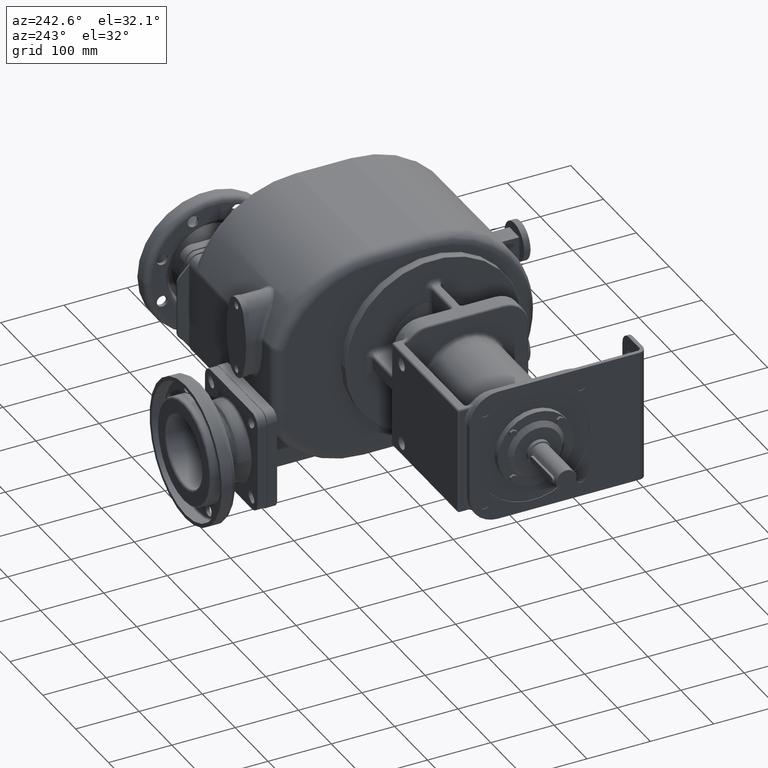
[diagram: clean part render]
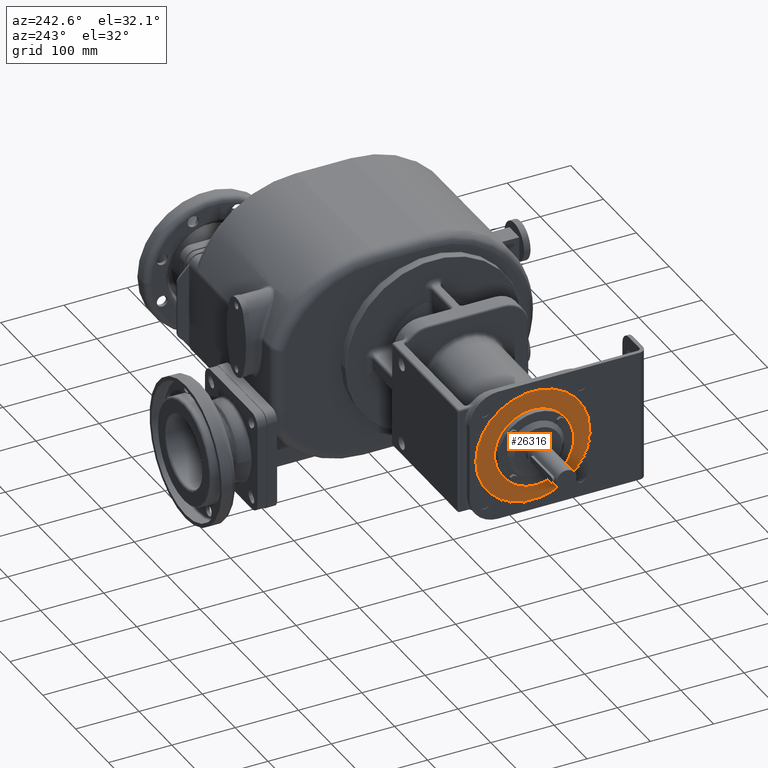
[diagram: same view with one face highlighted and labeled with its STEP entity id]
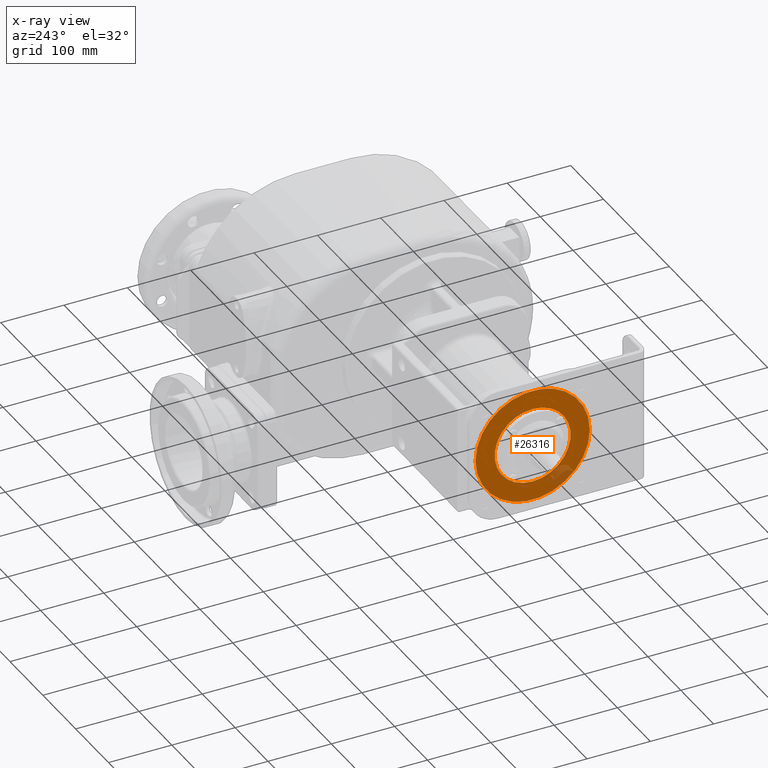
[diagram: x-ray of the same camera — body ghosted, the highlighted face saturated]
A machine part, auxiliary view. The second image highlights one B-rep face of the part: STEP entity #26316.
The next image is the same camera in x-ray: the body ghosted, the highlighted face saturated — about 6% of this face is hidden behind the body in this view.
In plain terms, the highlighted planar face has unit normal (-1, 0, 0).
Its self-contained STEP definition (entity closure, byte-faithful):
#9953=CARTESIAN_POINT('',(-3.835E2,1.7E2,0.E0));
#9954=DIRECTION('',(-1.E0,0.E0,0.E0));
#9955=DIRECTION('',(0.E0,-1.E0,0.E0));
#9956=AXIS2_PLACEMENT_3D('',#9953,#9954,#9955);
#9958=CARTESIAN_POINT('',(-3.835E2,1.7E2,0.E0));
#9959=DIRECTION('',(-1.E0,0.E0,0.E0));
#9960=DIRECTION('',(0.E0,1.E0,0.E0));
#9961=AXIS2_PLACEMENT_3D('',#9958,#9959,#9960);
#9963=CARTESIAN_POINT('',(-3.835E2,1.7E2,0.E0));
#9964=DIRECTION('',(-1.E0,0.E0,0.E0));
#9965=DIRECTION('',(0.E0,0.E0,-1.E0));
#9966=AXIS2_PLACEMENT_3D('',#9963,#9964,#9965);
#9968=CARTESIAN_POINT('',(-3.835E2,1.7E2,0.E0));
#9969=DIRECTION('',(-1.E0,0.E0,0.E0));
#9970=DIRECTION('',(0.E0,0.E0,1.E0));
#9971=AXIS2_PLACEMENT_3D('',#9968,#9969,#9970);
#13743=CARTESIAN_POINT('',(-3.835E2,1.7E2,-6.E1));
#13744=CARTESIAN_POINT('',(-3.835E2,1.7E2,6.E1));
#13745=VERTEX_POINT('',#13743);
#13746=VERTEX_POINT('',#13744);
#14018=CARTESIAN_POINT('',(-3.835E2,7.98E1,-1.564900814036E-14));
#14019=CARTESIAN_POINT('',(-3.835E2,2.602E2,2.669534226867E-14));
#14020=VERTEX_POINT('',#14018);
#14021=VERTEX_POINT('',#14019);
#26300=CARTESIAN_POINT('',(-3.835E2,1.7E2,0.E0));
#26301=DIRECTION('',(-1.E0,0.E0,0.E0));
#26302=DIRECTION('',(0.E0,-1.E0,0.E0));
#26303=AXIS2_PLACEMENT_3D('',#26300,#26301,#26302);
#26304=PLANE('',#26303);
#26305=ORIENTED_EDGE('',*,*,#26290,.F.);
#26307=ORIENTED_EDGE('',*,*,#26306,.F.);
#26308=EDGE_LOOP('',(#26305,#26307));
#26309=FACE_OUTER_BOUND('',#26308,.F.);
#26311=ORIENTED_EDGE('',*,*,#26310,.T.);
#26313=ORIENTED_EDGE('',*,*,#26312,.T.);
#26314=EDGE_LOOP('',(#26311,#26313));
#26315=FACE_BOUND('',#26314,.F.);
#26316=ADVANCED_FACE('',(#26309,#26315),#26304,.T.);
#9957=CIRCLE('',#9956,9.02E1);
#9962=CIRCLE('',#9961,9.02E1);
#9967=CIRCLE('',#9966,6.E1);
#9972=CIRCLE('',#9971,6.E1);
#26290=EDGE_CURVE('',#14020,#14021,#9957,.T.);
#26306=EDGE_CURVE('',#14021,#14020,#9962,.T.);
#26310=EDGE_CURVE('',#13745,#13746,#9967,.T.);
#26312=EDGE_CURVE('',#13746,#13745,#9972,.T.);